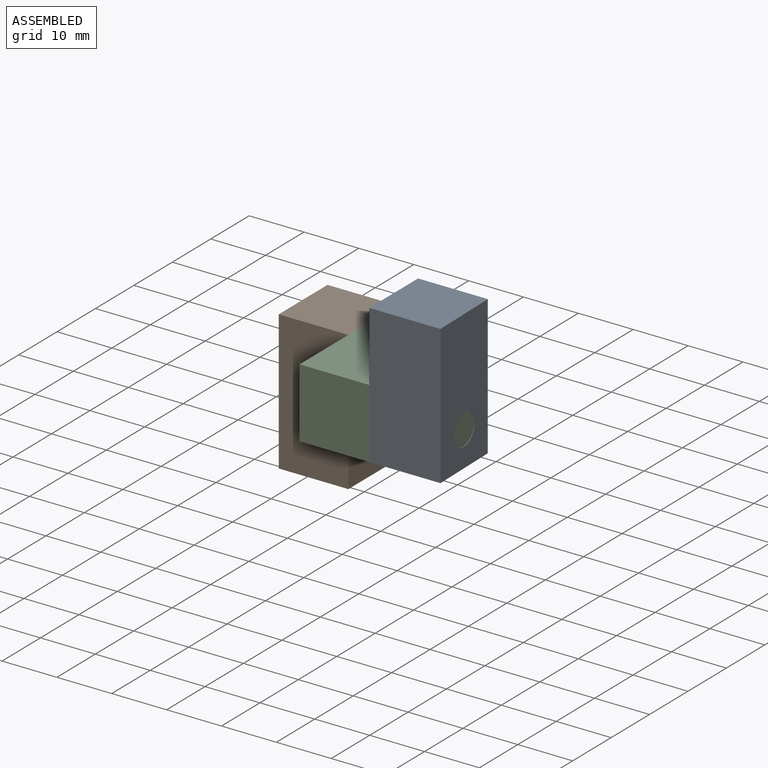
[diagram: assembled view]
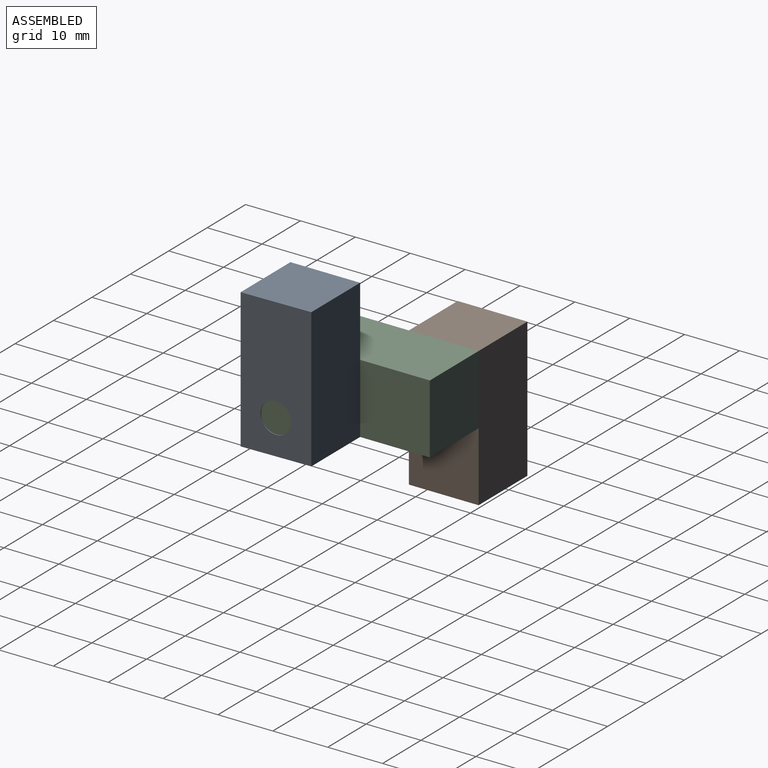
[diagram: assembled view, second angle]
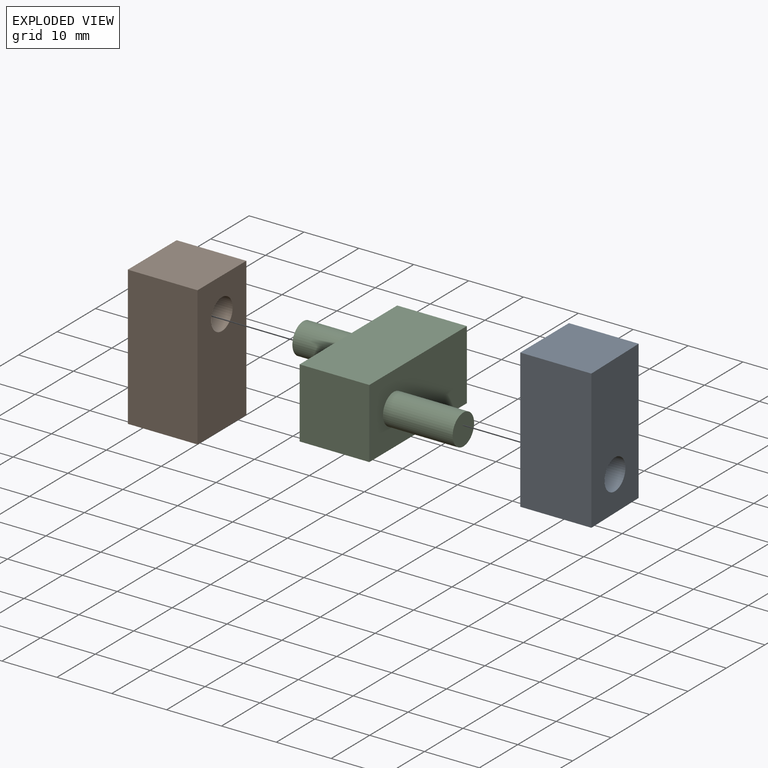
[diagram: exploded view]
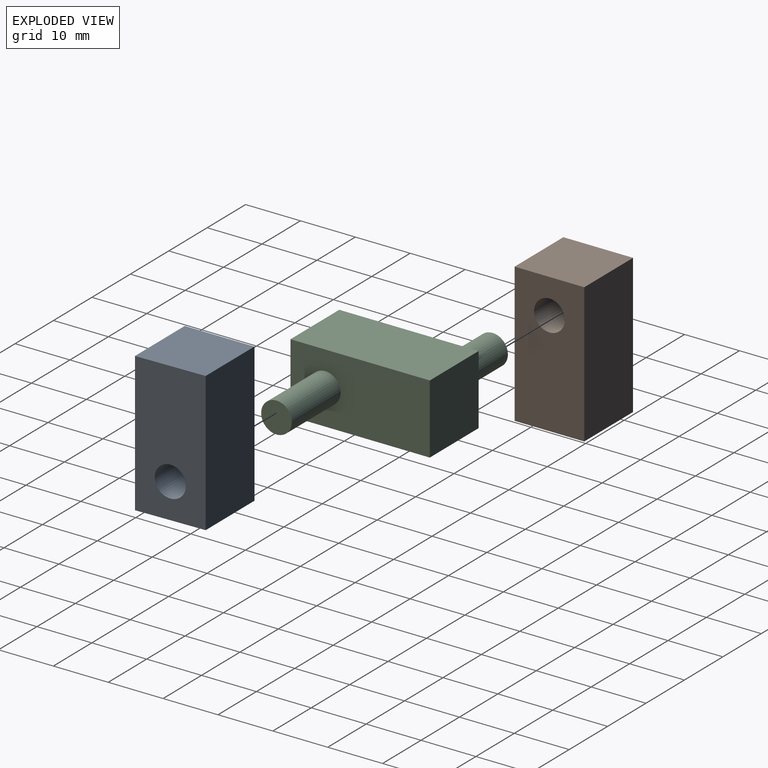
[diagram: exploded view, second angle]
ASSEMBLY  parts=3 mates=2
PART A: 7 faces, bbox 13.1x12.7x25.4 mm
  f0: plane 25.4x12.7mm, normal (0,1,0), area 322.6mm2, adj f1,f3,f4,f5
  f1: plane 25.4x12.7mm, normal (-1,0,0), area 298mm2, adj f0,f2,f4,f5,f6
  f2: plane 25.4x12.97mm, normal (0,-1,0), area 329.5mm2, adj f1,f3,f4,f5
  f3: plane 25.4x12.7mm, normal (1,0.02,0), area 298.1mm2, adj f0,f2,f4,f5,f6
  f4: plane 12.97x12.7mm, normal (0,0,1), area 163mm2, adj f0,f1,f2,f3
  f5: plane 12.97x12.7mm, normal (0,0,-1), area 163mm2, adj f0,f1,f2,f3
  f6: cylinder r=2.79mm len=13.02mm, axis (1,0.02,0), area 225.4mm2, adj f1,f3
PART B: 7 faces, bbox 12.7x12.7x25.4 mm
  f0: plane 25.4x12.7mm, normal (0,1,0), area 322.6mm2, adj f1,f3,f4,f5
  f1: plane 25.4x12.7mm, normal (-1,0,0), area 298.1mm2, adj f0,f2,f4,f5,f6
  f2: plane 25.4x12.7mm, normal (0,-1,0), area 322.6mm2, adj f1,f3,f4,f5
  f3: plane 25.4x12.7mm, normal (1,0,0), area 298.1mm2, adj f0,f2,f4,f5,f6
  f4: plane 12.7x12.7mm, normal (0,0,1), area 161.3mm2, adj f0,f1,f2,f3
  f5: plane 12.7x12.7mm, normal (0,0,-1), area 161.3mm2, adj f0,f1,f2,f3
  f6: cylinder r=2.79mm len=12.7mm, axis (-1,0,0), area 223mm2, adj f1,f3
PART C: 10 faces, bbox 38.1x25.4x12.7 mm
  f0: plane 12.7x12.7mm, normal (0,1,0), area 161.3mm2, adj f1,f3,f4,f5
  f1: plane 25.4x12.7mm, normal (-1,0,0), area 298.1mm2, adj f0,f2,f4,f5,f8
  f2: plane 12.7x12.7mm, normal (0,-1,0), area 161.3mm2, adj f1,f3,f4,f5
  f3: plane 25.4x12.7mm, normal (1,0,0), area 298.1mm2, adj f0,f2,f4,f5,f6
  f4: plane 25.4x12.7mm, normal (0,0,1), area 322.6mm2, adj f0,f1,f2,f3
  f5: plane 25.4x12.7mm, normal (0,0,-1), area 322.6mm2, adj f0,f1,f2,f3
  f6: cylinder r=2.79mm len=12.7mm, axis (-1,0,0), area 223mm2, adj f3,f7
  f7: plane 5.59x5.59mm, normal (1,0,0), area 24.5mm2, adj f6
  f8: cylinder r=2.79mm len=12.7mm, axis (1,0,0), area 223mm2, adj f1,f9
  f9: plane 5.59x5.59mm, normal (-1,0,0), area 24.5mm2, adj f8
PLACE A t=(2.44,-24.87,0.96)mm
PLACE B rot(axis=(1,0,0),180deg) t=(13.96,0.53,13.66)mm
PLACE C t=(13.21,-24.87,0.96)mm fixed
MATE fastened C.f3 <-> A.f1  axis (1,0,0) through (-18.67,-24.87,13.66)mm
MATE fastened C.f1 <-> B.f3  axis (-1,0,0) through (-31.37,-12.17,13.66)mm
